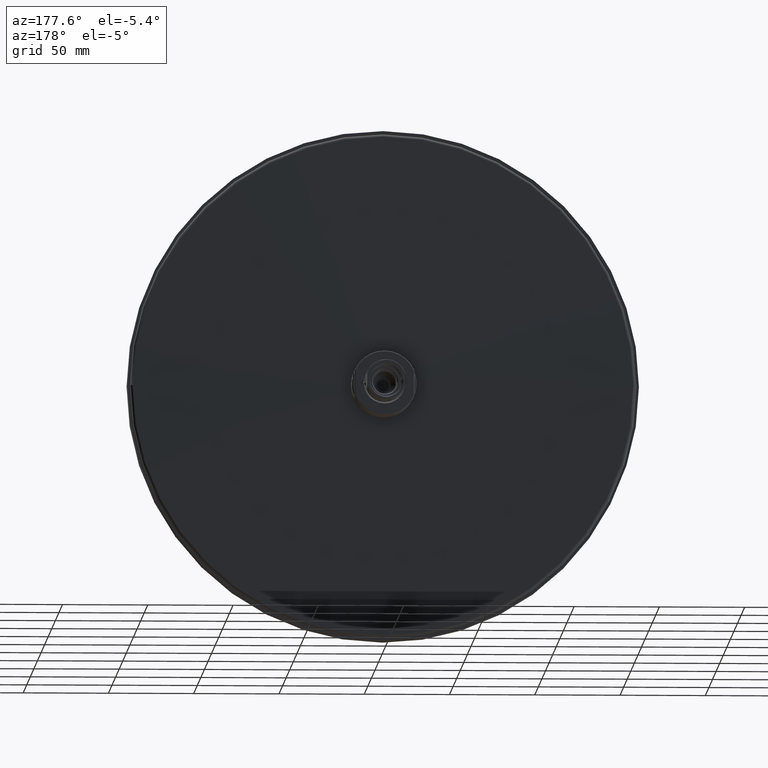
[diagram: clean part render]
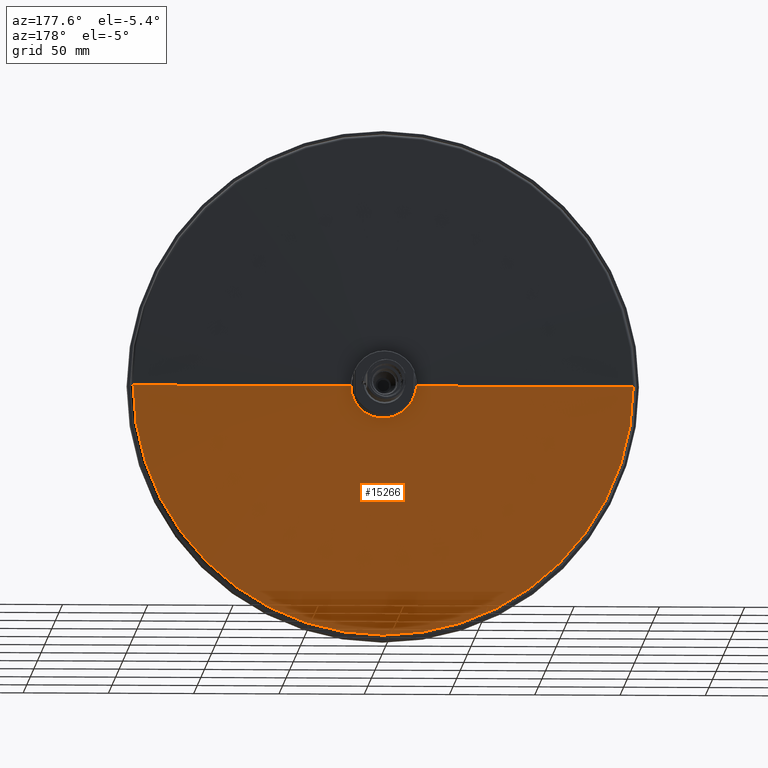
[diagram: same view with one face highlighted and labeled with its STEP entity id]
A machine part, auxiliary view. The second image highlights one B-rep face of the part: STEP entity #15266.
In plain terms, the highlighted conical surface has half-angle 89.5 deg.
Its self-contained STEP definition (entity closure, byte-faithful):
#15019=DIRECTION('',(9.999619230642E-1,-8.726535498368E-3,0.E0));
#15020=VECTOR('',#15019,1.297180290683E2);
#15021=CARTESIAN_POINT('',(1.69E1,6.144965054147E0,0.E0));
#15022=LINE('',#15021,#15020);
#15023=DIRECTION('',(-9.999619230642E-1,-8.726535498368E-3,0.E0));
#15024=VECTOR('',#15023,1.297180290683E2);
#15025=CARTESIAN_POINT('',(-1.69E1,6.144965054147E0,0.E0));
#15026=LINE('',#15025,#15024);
#15027=CARTESIAN_POINT('',(0.E0,5.012976068705E0,0.E0));
#15028=DIRECTION('',(0.E0,1.E0,0.E0));
#15029=DIRECTION('',(1.E0,0.E0,0.E0));
#15030=AXIS2_PLACEMENT_3D('',#15027,#15028,#15029);
#15032=CARTESIAN_POINT('',(0.E0,5.012976068705E0,0.E0));
#15033=DIRECTION('',(0.E0,1.E0,0.E0));
#15034=DIRECTION('',(-9.999989123022E-1,0.E0,-1.474921815007E-3));
#15035=AXIS2_PLACEMENT_3D('',#15032,#15033,#15034);
#15141=CARTESIAN_POINT('',(0.E0,6.144965054147E0,0.E0));
#15142=DIRECTION('',(0.E0,-1.E0,0.E0));
#15143=DIRECTION('',(-1.E0,0.E0,0.E0));
#15144=AXIS2_PLACEMENT_3D('',#15141,#15142,#15143);
#15165=CARTESIAN_POINT('',(-1.466130898032E2,5.012976068705E0,
3.590985022812E-14));
#15167=VERTEX_POINT('',#15165);
#15169=CARTESIAN_POINT('',(1.466130898032E2,5.012976068705E0,
1.122713033652E-13));
#15170=VERTEX_POINT('',#15169);
#15171=CARTESIAN_POINT('',(-1.69E1,6.144965054147E0,0.E0));
#15172=VERTEX_POINT('',#15171);
#15173=CARTESIAN_POINT('',(1.69E1,6.144965054148E0,1.294056220237E-14));
#15174=VERTEX_POINT('',#15173);
#15175=CARTESIAN_POINT('',(-1.466129303325E2,5.012976068705E0,
-2.162428445163E-1));
#15176=VERTEX_POINT('',#15175);
#15251=CARTESIAN_POINT('',(0.E0,5.578970561426E0,0.E0));
#15252=DIRECTION('',(0.E0,-1.E0,0.E0));
#15253=DIRECTION('',(-1.E0,0.E0,0.E0));
#15254=AXIS2_PLACEMENT_3D('',#15251,#15252,#15253);
#15255=CONICAL_SURFACE('',#15254,8.175654490160E1,8.95E1);
#15257=ORIENTED_EDGE('',*,*,#15256,.F.);
#15259=ORIENTED_EDGE('',*,*,#15258,.F.);
#15260=ORIENTED_EDGE('',*,*,#15246,.F.);
#15262=ORIENTED_EDGE('',*,*,#15261,.F.);
#15263=ORIENTED_EDGE('',*,*,#15242,.T.);
#15264=EDGE_LOOP('',(#15257,#15259,#15260,#15262,#15263));
#15265=FACE_OUTER_BOUND('',#15264,.F.);
#15266=ADVANCED_FACE('',(#15265),#15255,.T.);
#15031=CIRCLE('',#15030,1.466130898032E2);
#15036=CIRCLE('',#15035,1.466130898032E2);
#15145=CIRCLE('',#15144,1.69E1);
#15242=EDGE_CURVE('',#15172,#15167,#15026,.T.);
#15246=EDGE_CURVE('',#15174,#15170,#15022,.T.);
#15256=EDGE_CURVE('',#15176,#15167,#15036,.T.);
#15258=EDGE_CURVE('',#15170,#15176,#15031,.T.);
#15261=EDGE_CURVE('',#15172,#15174,#15145,.T.);